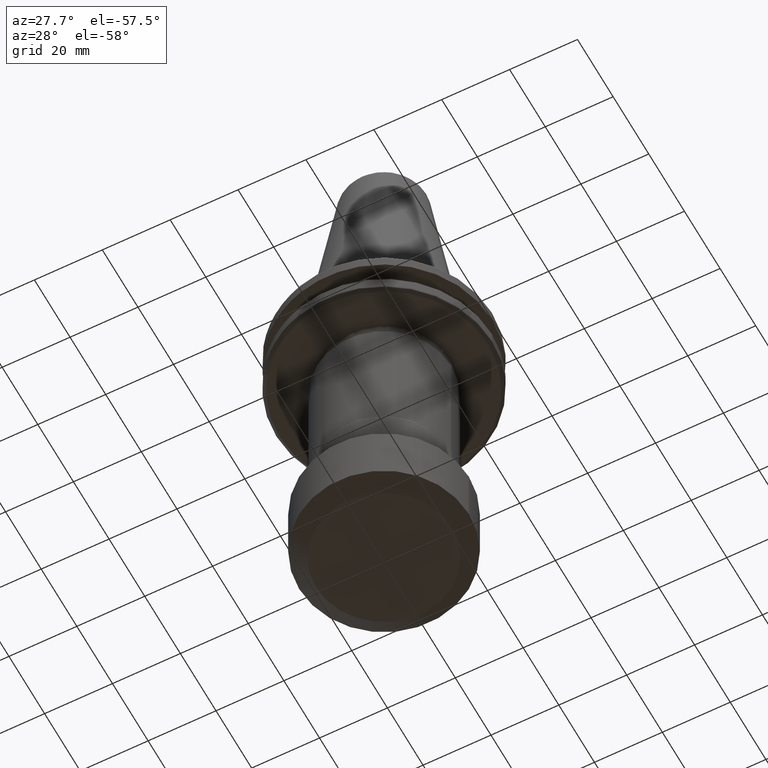
[diagram: clean part render]
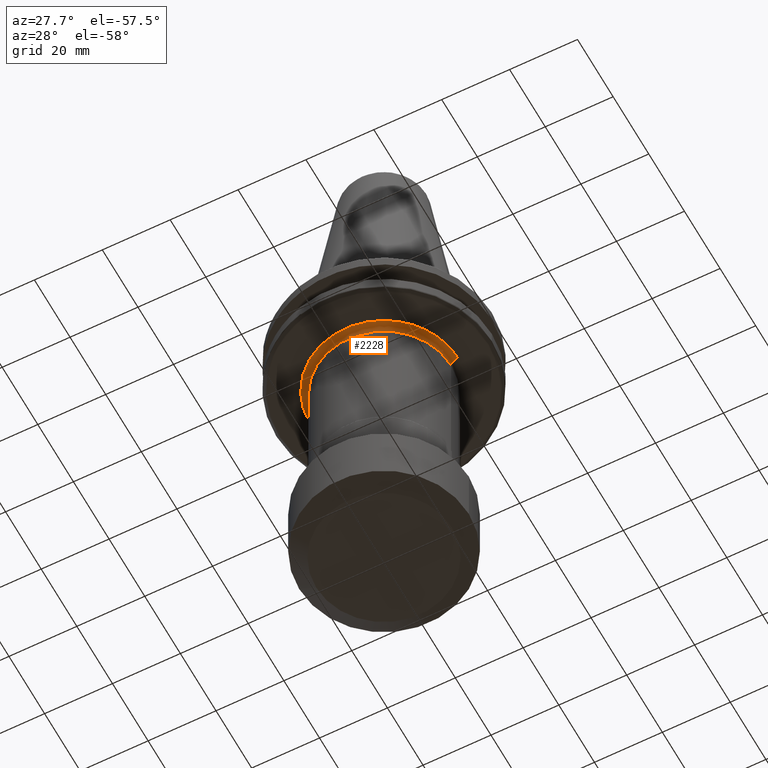
[diagram: same view with one face highlighted and labeled with its STEP entity id]
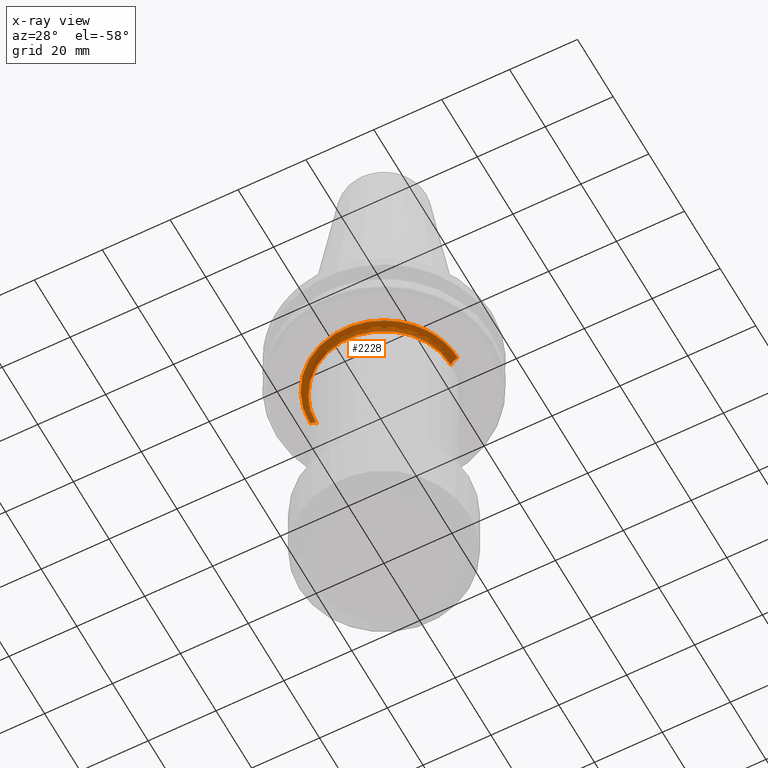
[diagram: x-ray of the same camera — body ghosted, the highlighted face saturated]
A machine part, auxiliary view. The second image highlights one B-rep face of the part: STEP entity #2228.
The next image is the same camera in x-ray: the body ghosted, the highlighted face saturated — about 2% of this face is hidden behind the body in this view.
In plain terms, the highlighted face is a freeform B-spline surface patch.
Its self-contained STEP definition (entity closure, byte-faithful):
#20 = CARTESIAN_POINT ( 'NONE',  ( -19.74999999999999600, 9.070040356185085700E-016, -21.10000000000000500 ) ) ;
#26 = CARTESIAN_POINT ( 'NONE',  ( -19.75000000000000000, 0.0000000000000000000, -19.92842712600000300 ) ) ;
#48 = CARTESIAN_POINT ( 'NONE',  ( -21.74999999374420800, 0.0000000000000000000, -19.10000000000000100 ) ) ;
#84 = CARTESIAN_POINT ( 'NONE',  ( -20.57842712400000100, 0.0000000000000000000, -19.10000000100000200 ) ) ;
#101 = ORIENTED_EDGE ( 'NONE', *, *, #1937, .F. ) ;
#130 = VERTEX_POINT ( 'NONE', #1172 ) ;
#209 = VERTEX_POINT ( 'NONE', #1996 ) ;
#232 = ORIENTED_EDGE ( 'NONE', *, *, #2056, .F. ) ;
#373 = B_SPLINE_CURVE_WITH_KNOTS ( 'NONE', 3,
 ( #1634, #1657, #1626, #1621, #1620, #1617, #1611, #1610, #1606, #1605, #1598, #1591, #1588, #1586, #1584, #1581, #1580, #1575, #1572, #1569, #1565, #1560, #1555, #1551, #1546, #1541, #1537, #1531, #1529, #1522, #1517, #1516, #1511, #1508, #1504, #1503, #1499, #1495, #1490, #1488, #1486, #1483, #1477, #1476, #1473, #1469, #1466, #1464, #1458, #1453, #1452, #1448, #1443, #1440, #1434, #1431, #1427, #1423, #1420, #1417, #1411, #1409, #1406, #1401, #1395, #1394, #1390, #1385, #1384, #1378, #1376, #1372, #1368, #1367, #1362, #1361, #1358, #1354, #1353, #1349, #1347, #1342, #1338, #1337, #1333, #1331, #1328, #1322, #1318, #1317, #1313, #1309, #1307, #1305, #1303, #1298, #1293, #1288, #1287, #1283, #1278, #1277, #1272, #1271, #1265, #1263, #1258, #1257, #1254, #1249, #1245, #1239, #1235, #1232, #1229, #1227, #1224, #1212, #1209, #1206, #1201, #1199, #1195, #1191, #1187, #1186, #1182, #1177, #1176, #1170, #1164, #1162, #1158, #1157 ),
 .UNSPECIFIED., .F., .F.,
 ( 4, 1, 1, 1, 1, 1, 2, 2, 1, 1, 1, 1, 1, 2, 2, 1, 1, 1, 1, 1, 1, 2, 2, 1, 1, 1, 1, 1, 1, 2, 2, 1, 1, 1, 1, 1, 2, 2, 1, 1, 1, 1, 1, 2, 2, 1, 1, 1, 1, 2, 2, 2, 1, 1, 1, 1, 2, 2, 1, 1, 1, 1, 1, 2, 2, 1, 1, 1, 1, 1, 2, 2, 1, 1, 1, 1, 1, 1, 2, 2, 1, 1, 1, 1, 1, 1, 2, 2, 1, 1, 1, 1, 1, 2, 2, 1, 1, 1, 1, 1, 2, 2, 4 ),
 ( 0.0000000000000000000, 0.03125000000000356000, 0.04687500000000535000, 0.05468750000000624500, 0.05859375000000668900, 0.06054687500000692500, 0.06152343750000704300, 0.06250000000000716100, 0.09375000000001063000, 0.1093750000000124200, 0.1171875000000132800, 0.1210937500000136800, 0.1230468750000138900, 0.1240234375000139900, 0.1250000000000140700, 0.1562500000000170700, 0.1718750000000185700, 0.1796875000000193200, 0.1835937500000197300, 0.1855468750000198700, 0.1865234375000199000, 0.1870117187500198500, 0.1875000000000197900, 0.2187500000000186000, 0.2343750000000179300, 0.2421875000000175100, 0.2460937500000172900, 0.2480468750000171800, 0.2490234375000171300, 0.2495117187500171500, 0.2500000000000171500, 0.2812500000000220400, 0.2968750000000244800, 0.3046875000000256500, 0.3085937500000262600, 0.3105468750000264800, 0.3115234375000265900, 0.3125000000000267000, 0.3437500000000304200, 0.3593750000000322500, 0.3671875000000332000, 0.3710937500000337000, 0.3730468750000338600, 0.3740234375000339200, 0.3750000000000339700, 0.4062500000000336400, 0.4218750000000334700, 0.4296875000000334200, 0.4335937500000333600, 0.4355468750000333600, 0.4375000000000333600, 0.5000000000000330800, 0.5312500000000329700, 0.5468750000000328600, 0.5546875000000328600, 0.5585937500000328600, 0.5605468750000328600, 0.5625000000000328600, 0.5937500000000324200, 0.6093750000000322000, 0.6171875000000320900, 0.6210937500000320900, 0.6230468750000320900, 0.6240234375000320900, 0.6250000000000320900, 0.6562500000000312000, 0.6718750000000307500, 0.6796875000000305300, 0.6835937500000304200, 0.6855468750000304200, 0.6865234375000304200, 0.6875000000000304200, 0.7187500000000288700, 0.7343750000000280900, 0.7421875000000277600, 0.7460937500000275300, 0.7480468750000274200, 0.7490234375000274200, 0.7495117187500274200, 0.7500000000000273100, 0.7812500000000227600, 0.7968750000000204300, 0.8046875000000192100, 0.8085937500000186500, 0.8105468750000184300, 0.8115234375000183200, 0.8120117187500182100, 0.8125000000000182100, 0.8437500000000158800, 0.8593750000000147700, 0.8671875000000142100, 0.8710937500000139900, 0.8730468750000138800, 0.8740234375000137700, 0.8750000000000136600, 0.9062500000000102100, 0.9218750000000084400, 0.9296875000000075500, 0.9335937500000071100, 0.9355468750000068800, 0.9365234375000067700, 0.9375000000000066600, 1.000000000000000000 ),
 .UNSPECIFIED. ) ;
#502 = CARTESIAN_POINT ( 'NONE',  ( -19.74999999999999300, 0.0000000000000000000, -21.10000000000000100 ) ) ;
#506 = CARTESIAN_POINT ( 'NONE',  ( -19.75000000000000700, -39.50000000000001400, -21.09999999999999800 ) ) ;
#510 = CARTESIAN_POINT ( 'NONE',  ( 19.75000000000000700, -39.50000000000001400, -21.09999999999999800 ) ) ;
#514 = CARTESIAN_POINT ( 'NONE',  ( 19.74999999999999300, 0.0000000000000000000, -21.10000000000000100 ) ) ;
#515 = CARTESIAN_POINT ( 'NONE',  ( -19.75000000000000000, 0.0000000000000000000, -19.92842712600000300 ) ) ;
#519 = CARTESIAN_POINT ( 'NONE',  ( -19.75000000000000700, -39.50000000000001400, -19.92842712600000300 ) ) ;
#524 = CARTESIAN_POINT ( 'NONE',  ( 19.75000000000000700, -39.50000000000001400, -19.92842712600000300 ) ) ;
#528 = CARTESIAN_POINT ( 'NONE',  ( 19.75000000000000000, 0.0000000000000000000, -19.92842712600000300 ) ) ;
#529 = CARTESIAN_POINT ( 'NONE',  ( -20.57842712400000100, 0.0000000000000000000, -19.10000000100000200 ) ) ;
#536 = CARTESIAN_POINT ( 'NONE',  ( -20.57842712400000100, -41.15685424800000200, -19.10000000100000200 ) ) ;
#541 = CARTESIAN_POINT ( 'NONE',  ( 20.57842712400000100, -41.15685424800000200, -19.10000000100000200 ) ) ;
#543 = CARTESIAN_POINT ( 'NONE',  ( 20.57842712400000100, 0.0000000000000000000, -19.10000000100000200 ) ) ;
#546 = CARTESIAN_POINT ( 'NONE',  ( -21.74999999900000000, 0.0000000000000000000, -19.09999999999999800 ) ) ;
#549 = CARTESIAN_POINT ( 'NONE',  ( -21.74999999900000000, -43.49999999800000700, -19.10000000000000100 ) ) ;
#552 = CARTESIAN_POINT ( 'NONE',  ( 21.74999999900000000, -43.49999999800000700, -19.10000000000000100 ) ) ;
#553 = CARTESIAN_POINT ( 'NONE',  ( 21.74999999900000000, 0.0000000000000000000, -19.09999999999999800 ) ) ;
#558 = CARTESIAN_POINT ( 'NONE',  ( -21.75942808941578800, 0.0000000000000000000, -19.09999999999195100 ) ) ;
#560 = CARTESIAN_POINT ( 'NONE',  ( -21.75942808941578800, -43.51885617883158400, -19.09999999999195500 ) ) ;
#564 = CARTESIAN_POINT ( 'NONE',  ( 21.75942808941578800, -43.51885617883158400, -19.09999999999195500 ) ) ;
#566 = CARTESIAN_POINT ( 'NONE',  ( 21.75942808941578800, 0.0000000000000000000, -19.09999999999195100 ) ) ;
#567 = CARTESIAN_POINT ( 'NONE',  ( -21.76885617983157700, 0.0000000000000000000, -19.09999999998391100 ) ) ;
#574 = CARTESIAN_POINT ( 'NONE',  ( -21.76885617983157700, -43.53771235966317500, -19.09999999998391800 ) ) ;
#575 = CARTESIAN_POINT ( 'NONE',  ( 21.76885617983157700, -43.53771235966317500, -19.09999999998391800 ) ) ;
#580 = CARTESIAN_POINT ( 'NONE',  ( 21.76885617983157700, 0.0000000000000000000, -19.09999999998391100 ) ) ;
#582 = CARTESIAN_POINT ( 'NONE',  ( -21.77828427024736200, 0.0000000000000000000, -19.09999999997585400 ) ) ;
#585 = CARTESIAN_POINT ( 'NONE',  ( -21.77828427024736500, -43.55656854049473700, -19.09999999997586400 ) ) ;
#588 = CARTESIAN_POINT ( 'NONE',  ( 21.77828427024736500, -43.55656854049473700, -19.09999999997586400 ) ) ;
#610 = CARTESIAN_POINT ( 'NONE',  ( 21.77828427024736200, 0.0000000000000000000, -19.09999999997585400 ) ) ;
#634 = CARTESIAN_POINT ( 'NONE',  ( -19.74999999999999600, 9.070040356185085700E-016, -21.10000000000000500 ) ) ;
#773 =( BOUNDED_CURVE ( )  B_SPLINE_CURVE ( 3, ( #48, #84, #26, #20 ),
 .UNSPECIFIED., .F., .T. ) 
 B_SPLINE_CURVE_WITH_KNOTS ( ( 4, 4 ),
 ( 0.06314145728520223500, 0.9368585433451400700 ),
 .UNSPECIFIED. ) 
 CURVE ( )  GEOMETRIC_REPRESENTATION_ITEM ( )  RATIONAL_B_SPLINE_CURVE ( ( 0.9565783021300851000, 0.7697947703221902400, 0.7697947704079440800, 0.9565783023873459800 ) ) 
 REPRESENTATION_ITEM ( '' )  );
#780 = VERTEX_POINT ( 'NONE', #2791 ) ;
#877 = DIRECTION ( 'NONE',  ( 0.0000000000000000000, 1.000000000000000000, 0.0000000000000000000 ) ) ;
#879 = DIRECTION ( 'NONE',  ( -0.0000000000000000000, -8.783410004945857400E-017, -1.000000000000000000 ) ) ;
#883 = CARTESIAN_POINT ( 'NONE',  ( 0.0000000000000000000, 0.0000000000000000000, -21.10000000000000100 ) ) ;
#1100 = AXIS2_PLACEMENT_3D ( 'NONE', #883, #879, #877 ) ;
#1157 = CARTESIAN_POINT ( 'NONE',  ( 21.74999999735519300, 0.0000000000000000000, -19.09999999999999800 ) ) ;
#1158 = CARTESIAN_POINT ( 'NONE',  ( 21.74999999918139800, -0.9670503558969049100, -19.10000000000000500 ) ) ;
#1162 = CARTESIAN_POINT ( 'NONE',  ( 21.68584070745618300, -1.929439736391531200, -19.10000000000000500 ) ) ;
#1164 = CARTESIAN_POINT ( 'NONE',  ( 21.55551714520144200, -2.902132647813493900, -19.10000000000000500 ) ) ;
#1170 = CARTESIAN_POINT ( 'NONE',  ( 21.55295795248568100, -2.921082757593515200, -19.10000000000000100 ) ) ;
#1172 = CARTESIAN_POINT ( 'NONE',  ( 21.74999999735519300, 0.0000000000000000000, -19.09999999999999800 ) ) ;
#1176 = CARTESIAN_POINT ( 'NONE',  ( 21.54833488382150400, -2.954984339429428600, -19.10000000000000100 ) ) ;
#1177 = CARTESIAN_POINT ( 'NONE',  ( 21.54134138275768300, -3.005823677909620800, -19.09999999999999800 ) ) ;
#1182 = CARTESIAN_POINT ( 'NONE',  ( 21.52461092713578900, -3.124357561114305100, -19.10000000000000100 ) ) ;
#1186 = CARTESIAN_POINT ( 'NONE',  ( 21.48950087000011400, -3.361060367860632800, -19.10000000000000900 ) ) ;
#1187 = CARTESIAN_POINT ( 'NONE',  ( 21.41268417216121400, -3.833006142701170100, -19.10000000000000100 ) ) ;
#1191 = CARTESIAN_POINT ( 'NONE',  ( 21.23266444221314200, -4.771058337773697000, -19.09999999999999800 ) ) ;
#1195 = CARTESIAN_POINT ( 'NONE',  ( 21.03312810065154900, -5.565092754221185900, -19.10000000000000500 ) ) ;
#1199 = CARTESIAN_POINT ( 'NONE',  ( 20.87521474604419000, -6.106403351193574900, -19.10000000000000500 ) ) ;
#1201 = CARTESIAN_POINT ( 'NONE',  ( 20.86916983963668300, -6.127033820349462100, -19.10000000000000100 ) ) ;
#1206 = CARTESIAN_POINT ( 'NONE',  ( 20.85826838505856900, -6.164039504142506200, -19.10000000000000500 ) ) ;
#1209 = CARTESIAN_POINT ( 'NONE',  ( 20.84184490819071900, -6.219519893045821300, -19.09999999999999800 ) ) ;
#1212 = CARTESIAN_POINT ( 'NONE',  ( 20.80302439716099300, -6.348777176316432700, -19.10000000000000500 ) ) ;
#1224 = CARTESIAN_POINT ( 'NONE',  ( 20.72338711508247000, -6.606503912842525100, -19.09999999999999800 ) ) ;
#1227 = CARTESIAN_POINT ( 'NONE',  ( 20.55612751084928300, -7.118806065834242200, -19.09999999999999800 ) ) ;
#1229 = CARTESIAN_POINT ( 'NONE',  ( 20.18966814207827200, -8.130805091575698600, -19.09999999999999800 ) ) ;
#1232 = CARTESIAN_POINT ( 'NONE',  ( 19.82080555118085400, -8.976623776082181600, -19.10000000000000500 ) ) ;
#1235 = CARTESIAN_POINT ( 'NONE',  ( 19.54633923835832100, -9.539559424481943500, -19.10000000000000500 ) ) ;
#1239 = CARTESIAN_POINT ( 'NONE',  ( 19.54109380758765700, -9.550299760610258200, -19.10000000000000500 ) ) ;
#1245 = CARTESIAN_POINT ( 'NONE',  ( 19.53160543164918600, -9.569688030671017000, -19.10000000000000900 ) ) ;
#1249 = CARTESIAN_POINT ( 'NONE',  ( 19.51735248123242500, -9.598757821257679600, -19.09999999999999800 ) ) ;
#1254 = CARTESIAN_POINT ( 'NONE',  ( 19.48395289136354000, -9.666499031095215200, -19.10000000000000100 ) ) ;
#1257 = CARTESIAN_POINT ( 'NONE',  ( 19.41658288937318800, -9.801628244644931000, -19.10000000000000500 ) ) ;
#1258 = CARTESIAN_POINT ( 'NONE',  ( 19.27955959638218900, -10.07047384724297100, -19.09999999999999800 ) ) ;
#1263 = CARTESIAN_POINT ( 'NONE',  ( 18.99637985435901700, -10.60251375443341000, -19.09999999999999800 ) ) ;
#1265 = CARTESIAN_POINT ( 'NONE',  ( 18.39348774614791200, -11.64398837679181800, -19.09999999999999800 ) ) ;
#1271 = CARTESIAN_POINT ( 'NONE',  ( 17.81409572625598500, -12.49792915248903700, -19.10000000000000500 ) ) ;
#1272 = CARTESIAN_POINT ( 'NONE',  ( 17.39352975361240500, -13.05862610649281300, -19.10000000000001200 ) ) ;
#1277 = CARTESIAN_POINT ( 'NONE',  ( 17.38567600180205700, -13.06908054259763200, -19.10000000000000100 ) ) ;
#1278 = CARTESIAN_POINT ( 'NONE',  ( 17.37133065483419300, -13.08814108090942500, -19.10000000000000100 ) ) ;
#1283 = CARTESIAN_POINT ( 'NONE',  ( 17.34979128495783800, -13.11671188359943600, -19.09999999999999800 ) ) ;
#1287 = CARTESIAN_POINT ( 'NONE',  ( 17.29938330927455700, -13.18323705643227100, -19.10000000000000100 ) ) ;
#1288 = CARTESIAN_POINT ( 'NONE',  ( 17.19796957402078500, -13.31572726832256800, -19.10000000000000100 ) ) ;
#1293 = CARTESIAN_POINT ( 'NONE',  ( 16.99275096796433700, -13.57846715700160800, -19.10000000000000100 ) ) ;
#1298 = CARTESIAN_POINT ( 'NONE',  ( 16.57274921365595000, -14.09498479395355000, -19.09999999999999800 ) ) ;
#1303 = CARTESIAN_POINT ( 'NONE',  ( 15.69448753625708700, -15.09217150623285700, -19.09999999999999800 ) ) ;
#1305 = CARTESIAN_POINT ( 'NONE',  ( 14.87610638057449300, -15.88544829683009900, -19.10000000000000100 ) ) ;
#1307 = CARTESIAN_POINT ( 'NONE',  ( 14.28340934628536400, -16.40265936337494800, -19.10000000000000100 ) ) ;
#1309 = CARTESIAN_POINT ( 'NONE',  ( 14.26230887731262000, -16.42101192471502800, -19.10000000000000100 ) ) ;
#1313 = CARTESIAN_POINT ( 'NONE',  ( 14.22317008182215400, -16.45492380120442300, -19.10000000000000500 ) ) ;
#1317 = CARTESIAN_POINT ( 'NONE',  ( 14.16438407825930000, -16.50567786846525900, -19.09999999999999800 ) ) ;
#1318 = CARTESIAN_POINT ( 'NONE',  ( 14.02667206432259000, -16.62330779309444000, -19.10000000000000500 ) ) ;
#1322 = CARTESIAN_POINT ( 'NONE',  ( 13.74906934728900500, -16.85538271310170800, -19.09999999999999800 ) ) ;
#1328 = CARTESIAN_POINT ( 'NONE',  ( 13.18514915658110600, -17.30679283611188200, -19.10000000000000500 ) ) ;
#1331 = CARTESIAN_POINT ( 'NONE',  ( 12.02244974860243700, -18.15865421411480100, -19.10000000000000100 ) ) ;
#1333 = CARTESIAN_POINT ( 'NONE',  ( 10.96609192479866800, -18.80146305008736400, -19.10000000000000100 ) ) ;
#1337 = CARTESIAN_POINT ( 'NONE',  ( 10.21245668577705200, -19.20335501423337000, -19.10000000000000500 ) ) ;
#1338 = CARTESIAN_POINT ( 'NONE',  ( 10.18679213712971600, -19.21698311048350400, -19.10000000000000500 ) ) ;
#1342 = CARTESIAN_POINT ( 'NONE',  ( 10.13823472937116700, -19.24264510426625900, -19.10000000000000100 ) ) ;
#1347 = CARTESIAN_POINT ( 'NONE',  ( 10.06534319010763100, -19.28099344810493300, -19.10000000000000100 ) ) ;
#1349 = CARTESIAN_POINT ( 'NONE',  ( 9.894874938446145400, -19.36946038921378100, -19.10000000000000100 ) ) ;
#1353 = CARTESIAN_POINT ( 'NONE',  ( 9.552386461603418900, -19.54234416003906500, -19.10000000000000100 ) ) ;
#1354 = CARTESIAN_POINT ( 'NONE',  ( 8.861201613839041300, -19.87191125612016100, -19.10000000000000500 ) ) ;
#1358 = CARTESIAN_POINT ( 'NONE',  ( 7.454000341994555100, -20.46624366600427800, -19.10000000000000100 ) ) ;
#1361 = CARTESIAN_POINT ( 'NONE',  ( 6.205259406729459700, -20.86458267628546900, -19.10000000000000900 ) ) ;
#1362 = CARTESIAN_POINT ( 'NONE',  ( 5.300632825327755700, -21.09428088958100000, -19.10000000000000500 ) ) ;
#1367 = CARTESIAN_POINT ( 'NONE',  ( 5.243978490607509500, -21.10844160066808300, -19.10000000000000900 ) ) ;
#1368 = CARTESIAN_POINT ( 'NONE',  ( 5.134031265736361100, -21.13546015883695300, -19.10000000000000100 ) ) ;
#1372 = CARTESIAN_POINT ( 'NONE',  ( 4.969030866596477300, -21.17533418356638100, -19.09999999999999400 ) ) ;
#1376 = CARTESIAN_POINT ( 'NONE',  ( 4.583473002437997000, -21.26379688693476300, -19.10000000000000100 ) ) ;
#1378 = CARTESIAN_POINT ( 'NONE',  ( 3.810129542792688500, -21.42241554300362300, -19.10000000000000500 ) ) ;
#1384 = CARTESIAN_POINT ( 'NONE',  ( 2.254531698188634100, -21.66642585246971800, -19.10000000000000500 ) ) ;
#1385 = CARTESIAN_POINT ( 'NONE',  ( 0.9058862451335661900, -21.75004554171790300, -19.10000000000001200 ) ) ;
#1390 = CARTESIAN_POINT ( 'NONE',  ( -1.811772490264371900, -21.74990891410772100, -19.09999999999999400 ) ) ;
#1394 = CARTESIAN_POINT ( 'NONE',  ( -3.597834581041039500, -21.52683191830754700, -19.10000000000000900 ) ) ;
#1395 = CARTESIAN_POINT ( 'NONE',  ( -5.408721515287572500, -21.06682977096545200, -19.09999999999999800 ) ) ;
#1401 = CARTESIAN_POINT ( 'NONE',  ( -5.460279994955321600, -21.05352140734558800, -19.10000000000000100 ) ) ;
#1406 = CARTESIAN_POINT ( 'NONE',  ( -5.566488264422326400, -21.02569650408653600, -19.09999999999999800 ) ) ;
#1409 = CARTESIAN_POINT ( 'NONE',  ( -5.725575096778247700, -20.98338206856912400, -19.10000000000000100 ) ) ;
#1411 = CARTESIAN_POINT ( 'NONE',  ( -6.095198702696656300, -20.88060882129336800, -19.10000000000000100 ) ) ;
#1417 = CARTESIAN_POINT ( 'NONE',  ( -6.828129902885179600, -20.65890406913468200, -19.10000000000000500 ) ) ;
#1420 = CARTESIAN_POINT ( 'NONE',  ( -8.268728256669005500, -20.15086153438853200, -19.10000000000000100 ) ) ;
#1423 = CARTESIAN_POINT ( 'NONE',  ( -9.460217051466791800, -19.60459702387110800, -19.10000000000000900 ) ) ;
#1427 = CARTESIAN_POINT ( 'NONE',  ( -10.25951527556703300, -19.17825707755349300, -19.10000000000000500 ) ) ;
#1431 = CARTESIAN_POINT ( 'NONE',  ( -10.28097864386386600, -19.16675696376514500, -19.10000000000000500 ) ) ;
#1434 = CARTESIAN_POINT ( 'NONE',  ( -10.32658451918511700, -19.14222428896746200, -19.10000000000000500 ) ) ;
#1440 = CARTESIAN_POINT ( 'NONE',  ( -10.39491468088532300, -19.10531210807419800, -19.10000000000000100 ) ) ;
#1443 = CARTESIAN_POINT ( 'NONE',  ( -10.55380116588086600, -19.01839150511297700, -19.10000000000000500 ) ) ;
#1448 = CARTESIAN_POINT ( 'NONE',  ( -10.86937189998546000, -18.84138157568276000, -19.10000000000000100 ) ) ;
#1452 = CARTESIAN_POINT ( 'NONE',  ( -11.49170442464876300, -18.47468682279110300, -19.10000000000000500 ) ) ;
#1453 = CARTESIAN_POINT ( 'NONE',  ( -12.70113369979181100, -17.69059774088307100, -19.10000000000000900 ) ) ;
#1458 = CARTESIAN_POINT ( 'NONE',  ( -13.67738317988544600, -16.93160782589091800, -19.10000000000000900 ) ) ;
#1464 = CARTESIAN_POINT ( 'NONE',  ( -14.32086944630558600, -16.36996687809294900, -19.10000000000000100 ) ) ;
#1466 = CARTESIAN_POINT ( 'NONE',  ( -14.33729187354683900, -16.35558175630503200, -19.10000000000000500 ) ) ;
#1469 = CARTESIAN_POINT ( 'NONE',  ( -14.37312779137933600, -16.32409794265524600, -19.10000000000000500 ) ) ;
#1473 = CARTESIAN_POINT ( 'NONE',  ( -14.42679557488841600, -16.27679295297923900, -19.10000000000000100 ) ) ;
#1476 = CARTESIAN_POINT ( 'NONE',  ( -14.55141775039845700, -16.16585975932592600, -19.10000000000000100 ) ) ;
#1477 = CARTESIAN_POINT ( 'NONE',  ( -14.79825149070755200, -15.94177383438215900, -19.10000000000000100 ) ) ;
#1483 = CARTESIAN_POINT ( 'NONE',  ( -15.28227652848157300, -15.48472383394604000, -19.10000000000000100 ) ) ;
#1486 = CARTESIAN_POINT ( 'NONE',  ( -16.21175683265300900, -14.53511123087939800, -19.10000000000000500 ) ) ;
#1488 = CARTESIAN_POINT ( 'NONE',  ( -16.94233462815438400, -13.66027882448902100, -19.10000000000000500 ) ) ;
#1490 = CARTESIAN_POINT ( 'NONE',  ( -17.40715102076941200, -13.04046439286891800, -19.10000000000000900 ) ) ;
#1495 = CARTESIAN_POINT ( 'NONE',  ( -17.41294483963312700, -13.03272530962387600, -19.09999999999999400 ) ) ;
#1499 = CARTESIAN_POINT ( 'NONE',  ( -17.42586916230294500, -13.01543822018794600, -19.09999999999999800 ) ) ;
#1503 = CARTESIAN_POINT ( 'NONE',  ( -17.44523512868893500, -12.98949518648346800, -19.10000000000000100 ) ) ;
#1504 = CARTESIAN_POINT ( 'NONE',  ( -17.49027876025845500, -12.92887464431896100, -19.10000000000000100 ) ) ;
#1508 = CARTESIAN_POINT ( 'NONE',  ( -17.57979153007298800, -12.80728637257369200, -19.10000000000000100 ) ) ;
#1511 = CARTESIAN_POINT ( 'NONE',  ( -17.75651909640387100, -12.56272107941810900, -19.10000000000000100 ) ) ;
#1516 = CARTESIAN_POINT ( 'NONE',  ( -18.10078233587303500, -12.06803549444682000, -19.10000000000000100 ) ) ;
#1517 = CARTESIAN_POINT ( 'NONE',  ( -18.75254124204098700, -11.05644432986371800, -19.09999999999999800 ) ) ;
#1522 = CARTESIAN_POINT ( 'NONE',  ( -19.24816160829285700, -10.15127476940874700, -19.10000000000001600 ) ) ;
#1529 = CARTESIAN_POINT ( 'NONE',  ( -19.55528679996546500, -9.521205502712183100, -19.10000000000000100 ) ) ;
#1531 = CARTESIAN_POINT ( 'NONE',  ( -19.55900867033836500, -9.513555545009447600, -19.09999999999999800 ) ) ;
#1537 = CARTESIAN_POINT ( 'NONE',  ( -19.56743762935396800, -9.496205413769658300, -19.10000000000000100 ) ) ;
#1541 = CARTESIAN_POINT ( 'NONE',  ( -19.58006315357130600, -9.470173416706698400, -19.10000000000000100 ) ) ;
#1546 = CARTESIAN_POINT ( 'NONE',  ( -19.60939730993564800, -9.409384488803622700, -19.10000000000000100 ) ) ;
#1551 = CARTESIAN_POINT ( 'NONE',  ( -19.66756402209352900, -9.287616227306109800, -19.10000000000000100 ) ) ;
#1555 = CARTESIAN_POINT ( 'NONE',  ( -19.78189104412596300, -9.043318081545555400, -19.10000000000000100 ) ) ;
#1560 = CARTESIAN_POINT ( 'NONE',  ( -20.00251947905748700, -8.551675298962347700, -19.09999999999999400 ) ) ;
#1565 = CARTESIAN_POINT ( 'NONE',  ( -20.41167391238724000, -7.556203769547625600, -19.09999999999999400 ) ) ;
#1569 = CARTESIAN_POINT ( 'NONE',  ( -20.70734496404135100, -6.682052234195025700, -19.10000000000000100 ) ) ;
#1572 = CARTESIAN_POINT ( 'NONE',  ( -20.88539546906308100, -6.071498367445001600, -19.10000000000000900 ) ) ;
#1575 = CARTESIAN_POINT ( 'NONE',  ( -20.88955969339656300, -6.057147228265714400, -19.10000000000000500 ) ) ;
#1576 = CARTESIAN_POINT ( 'NONE',  ( 19.74999999999999600, -2.418677428316022700E-015, -21.10000000000000100 ) ) ;
#1580 = CARTESIAN_POINT ( 'NONE',  ( -20.89906028115261100, -6.024282408090936500, -19.10000000000000500 ) ) ;
#1581 = CARTESIAN_POINT ( 'NONE',  ( -20.91325205636009700, -5.974973129159041100, -19.09999999999999800 ) ) ;
#1584 = CARTESIAN_POINT ( 'NONE',  ( -20.94595245352475000, -5.859833804296453500, -19.10000000000000100 ) ) ;
#1586 = CARTESIAN_POINT ( 'NONE',  ( -21.00969826790951700, -5.629217791818718700, -19.09999999999999800 ) ) ;
#1588 = CARTESIAN_POINT ( 'NONE',  ( -21.13056997690087600, -5.166636315852944300, -19.10000000000000100 ) ) ;
#1591 = CARTESIAN_POINT ( 'NONE',  ( -21.34583371577092900, -4.236075559880188000, -19.10000000000000900 ) ) ;
#1598 = CARTESIAN_POINT ( 'NONE',  ( -21.48495175632351100, -3.429198676404304500, -19.10000000000000100 ) ) ;
#1605 = CARTESIAN_POINT ( 'NONE',  ( -21.55978994704346300, -2.870229687267973800, -19.10000000000000100 ) ) ;
#1606 = CARTESIAN_POINT ( 'NONE',  ( -21.56151641535511800, -2.857216672563961200, -19.10000000000000100 ) ) ;
#1610 = CARTESIAN_POINT ( 'NONE',  ( -21.56546371594689000, -2.827262293425896600, -19.09999999999999800 ) ) ;
#1611 = CARTESIAN_POINT ( 'NONE',  ( -21.57133767515343700, -2.782327814501005300, -19.10000000000000100 ) ) ;
#1617 = CARTESIAN_POINT ( 'NONE',  ( -21.58471463820091100, -2.677460325484974900, -19.10000000000000100 ) ) ;
#1620 = CARTESIAN_POINT ( 'NONE',  ( -21.61015279722462200, -2.467643861354537700, -19.10000000000000100 ) ) ;
#1621 = CARTESIAN_POINT ( 'NONE',  ( -21.65576604698724600, -2.047684988700054600, -19.10000000000000100 ) ) ;
#1626 = CARTESIAN_POINT ( 'NONE',  ( -21.72594027337331500, -1.206463465816735000, -19.10000000000001200 ) ) ;
#1634 = CARTESIAN_POINT ( 'NONE',  ( -21.74999999374420800, 0.0000000000000000000, -19.10000000000000100 ) ) ;
#1654 = ORIENTED_EDGE ( 'NONE', *, *, #2472, .T. ) ;
#1657 = CARTESIAN_POINT ( 'NONE',  ( -21.74999999917982400, -0.4831813989321180900, -19.10000000000000100 ) ) ;
#1667 =( BOUNDED_CURVE ( )  B_SPLINE_CURVE ( 3, ( #1576, #3450, #3682, #2340 ),
 .UNSPECIFIED., .F., .T. ) 
 B_SPLINE_CURVE_WITH_KNOTS ( ( 4, 4 ),
 ( 0.05440428619309752000, 0.9281213722530418100 ),
 .UNSPECIFIED. ) 
 CURVE ( )  GEOMETRIC_REPRESENTATION_ITEM ( )  RATIONAL_B_SPLINE_CURVE ( ( 0.9565783023873459800, 0.7697947704079440800, 0.7697947703221902400, 0.9565783021300851000 ) ) 
 REPRESENTATION_ITEM ( '' )  );
#1937 = EDGE_CURVE ( 'NONE', #209, #130, #373, .T. ) ;
#1996 = CARTESIAN_POINT ( 'NONE',  ( -21.74999999374420800, 0.0000000000000000000, -19.10000000000000100 ) ) ;
#2056 = EDGE_CURVE ( 'NONE', #780, #3267, #3102, .T. ) ;
#2094 = EDGE_LOOP ( 'NONE', ( #3902, #232, #1654, #101 ) ) ;
#2228 = ADVANCED_FACE ( 'NONE', ( #2552 ), #2839, .F. ) ;
#2340 = CARTESIAN_POINT ( 'NONE',  ( 21.74999999735519300, 0.0000000000000000000, -19.09999999999999800 ) ) ;
#2472 = EDGE_CURVE ( 'NONE', #780, #130, #1667, .T. ) ;
#2552 = FACE_OUTER_BOUND ( 'NONE', #2094, .T. ) ;
#2791 = CARTESIAN_POINT ( 'NONE',  ( 19.74999999999999600, -2.418677428316022700E-015, -21.10000000000000100 ) ) ;
#2839 =( BOUNDED_SURFACE ( )  B_SPLINE_SURFACE ( 3, 3, ( 
 ( #610, #588, #585, #582 ),
 ( #580, #575, #574, #567 ),
 ( #566, #564, #560, #558 ),
 ( #553, #552, #549, #546 ),
 ( #543, #541, #536, #529 ),
 ( #528, #524, #519, #515 ),
 ( #514, #510, #506, #502 ) ),
 .UNSPECIFIED., .F., .F., .T. ) 
 B_SPLINE_SURFACE_WITH_KNOTS ( ( 4, 3, 4 ),
 ( 4, 4 ),
 ( 0.05440428619309728400, 0.06314145705598882300, 0.9368585433451430700 ),
 ( 0.0000000000000000000, 1.000000000000000000 ),
 .UNSPECIFIED. ) 
 GEOMETRIC_REPRESENTATION_ITEM ( )  RATIONAL_B_SPLINE_SURFACE ( (
 ( 0.9565783021300851000, 0.3188594340433610300, 0.3188594340433610300, 0.9565783021300851000),
 ( 0.9565783021300851000, 0.3188594340433610300, 0.3188594340433610300, 0.9565783021300851000),
 ( 0.9565783021300851000, 0.3188594340433610300, 0.3188594340433610300, 0.9565783021300851000),
 ( 0.9565783021300851000, 0.3188594340433610300, 0.3188594340433610300, 0.9565783021300851000),
 ( 0.7697947703221902400, 0.2565982567740630000, 0.2565982567740630000, 0.7697947703221902400),
 ( 0.7697947704079440800, 0.2565982568026480300, 0.2565982568026480300, 0.7697947704079440800),
 ( 0.9565783023873469800, 0.3188594341291160500, 0.3188594341291160500, 0.9565783023873469800) ) ) 
 REPRESENTATION_ITEM ( '' )  SURFACE ( )  );
#3102 = CIRCLE ( 'NONE', #1100, 19.74999999999999300 ) ;
#3267 = VERTEX_POINT ( 'NONE', #634 ) ;
#3450 = CARTESIAN_POINT ( 'NONE',  ( 19.75000000000000000, 0.0000000000000000000, -19.92842712600000300 ) ) ;
#3465 = EDGE_CURVE ( 'NONE', #209, #3267, #773, .T. ) ;
#3682 = CARTESIAN_POINT ( 'NONE',  ( 20.57842712400000100, 0.0000000000000000000, -19.10000000100000200 ) ) ;
#3902 = ORIENTED_EDGE ( 'NONE', *, *, #3465, .T. ) ;